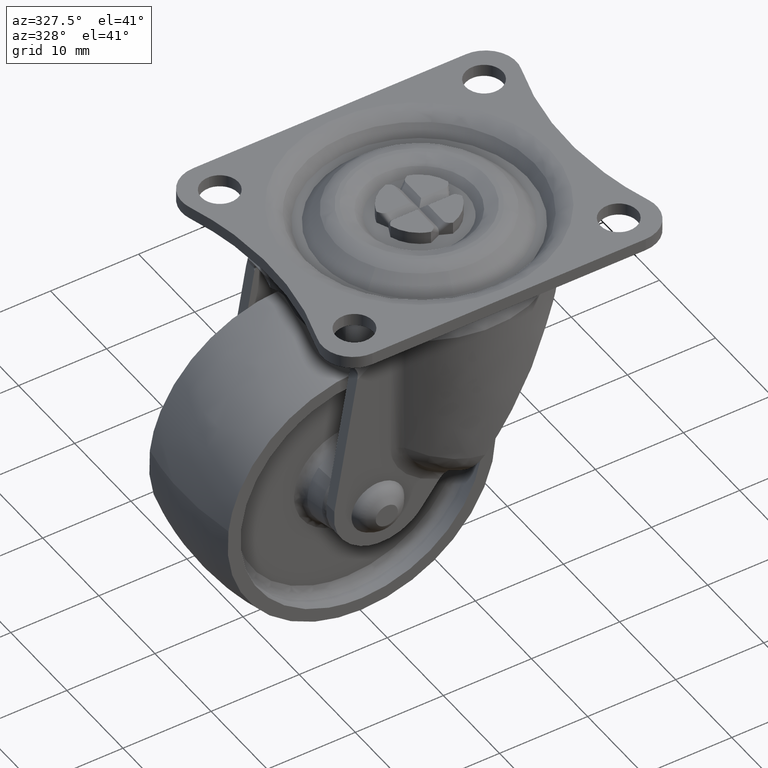
[diagram: clean part render]
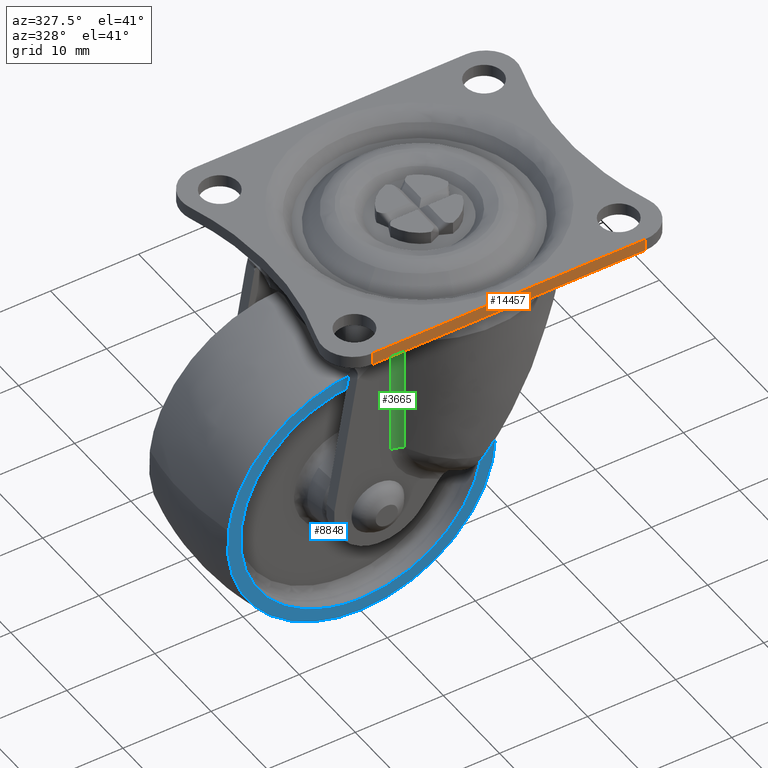
[diagram: same view with three faces highlighted in distinct colors, each labeled with its STEP entity id]
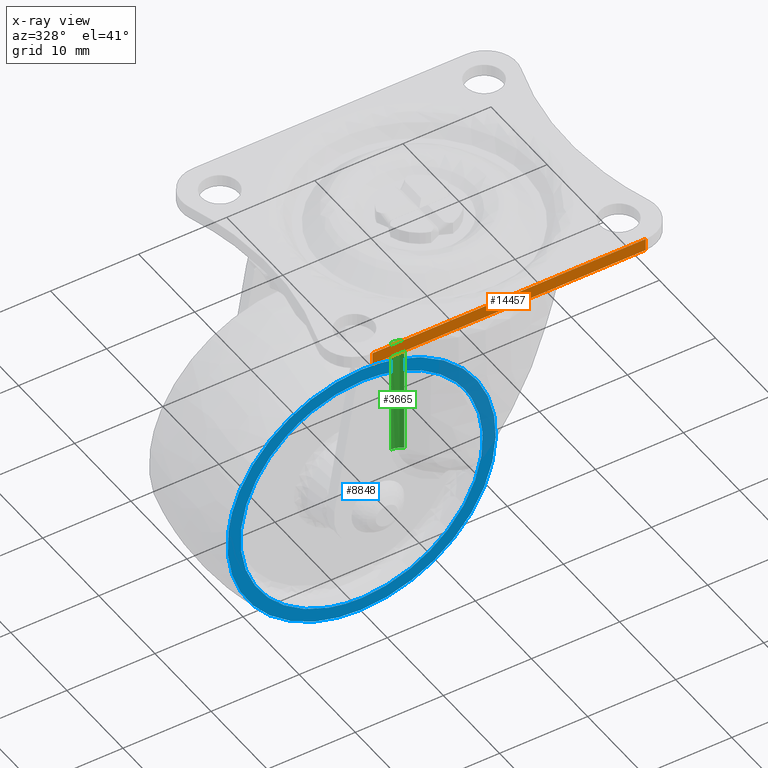
[diagram: x-ray of the same camera — body ghosted, the three highlighted faces saturated]
A machine part, auxiliary view with three faces highlighted in distinct colors.
The next image is the same camera in x-ray (body ghosted, the three faces saturated) — at least one of them is partly hidden behind the body in this view.
Their STEP definitions:

[orange] entity #14457 — the highlighted face is a freeform B-spline surface patch.
#14122=CARTESIAN_POINT('',(15.500000000000000,-16.0,-1.399999999999956));
#14123=VERTEX_POINT('',#14122);
#14139=CARTESIAN_POINT('',(-15.500003054326401,-15.999999999998749,-1.399999999999956));
#14140=VERTEX_POINT('',#14139);
#14141=CARTESIAN_POINT('',(-15.500003054326401,-15.999999999998749,-1.399999999999956));
#14142=CARTESIAN_POINT('',(15.500000000000000,-16.0,-1.399999999999956));
#14143=QUASI_UNIFORM_CURVE('',1,(#14141,#14142),.UNSPECIFIED.,.F.,.U.);
#14144=EDGE_CURVE('',#14140,#14123,#14143,.T.);
#14410=CARTESIAN_POINT('',(-15.500003054326401,-15.999999999998749,0.0));
#14411=VERTEX_POINT('',#14410);
#14412=CARTESIAN_POINT('',(-15.500003054326401,-15.999999999998749,-1.399999999999956));
#14413=CARTESIAN_POINT('',(-15.500003054326401,-15.999999999998749,0.0));
#14414=QUASI_UNIFORM_CURVE('',1,(#14412,#14413),.UNSPECIFIED.,.F.,.U.);
#14415=EDGE_CURVE('',#14140,#14411,#14414,.T.);
#14436=CARTESIAN_POINT('',(-17.048453146805979,-16.0,0.069929992284743));
#14437=CARTESIAN_POINT('',(-17.048453146805979,-16.0,-1.469929929699822));
#14438=CARTESIAN_POINT('',(17.048450923964459,-16.0,0.069929992284743));
#14439=CARTESIAN_POINT('',(17.048450923964459,-16.0,-1.469929929699822));
#14440=B_SPLINE_SURFACE_WITH_KNOTS('',1,1,((#14436,#14438),(#14437,#14439)),.UNSPECIFIED.,.F.,.F.,.U.,(2,2),(2,2),(0.041708337925747,0.958291624821350),(0.0,34.096904070770449),.UNSPECIFIED.);
#14441=ORIENTED_EDGE('',*,*,#14144,.T.);
#14442=CARTESIAN_POINT('',(15.500000000000000,-16.0,0.0));
#14443=VERTEX_POINT('',#14442);
#14444=CARTESIAN_POINT('',(15.500000000000000,-16.0,-1.399999999999956));
#14445=CARTESIAN_POINT('',(15.500000000000000,-16.0,0.0));
#14446=QUASI_UNIFORM_CURVE('',1,(#14444,#14445),.UNSPECIFIED.,.F.,.U.);
#14447=EDGE_CURVE('',#14123,#14443,#14446,.T.);
#14448=ORIENTED_EDGE('',*,*,#14447,.T.);
#14449=CARTESIAN_POINT('',(-15.500003054326401,-15.999999999998749,0.0));
#14450=CARTESIAN_POINT('',(15.500000000000000,-16.0,0.0));
#14451=QUASI_UNIFORM_CURVE('',1,(#14449,#14450),.UNSPECIFIED.,.F.,.U.);
#14452=EDGE_CURVE('',#14411,#14443,#14451,.T.);
#14453=ORIENTED_EDGE('',*,*,#14452,.F.);
#14454=ORIENTED_EDGE('',*,*,#14415,.F.);
#14455=EDGE_LOOP('',(#14441,#14448,#14453,#14454));
#14456=FACE_OUTER_BOUND('',#14455,.T.);
#14457=ADVANCED_FACE('',(#14456),#14440,.T.);

[blue] entity #8848 — the highlighted face is a freeform B-spline surface patch.
#6855=CARTESIAN_POINT('',(-8.559574523220956,-6.999999999999999,10.760863533258931));
#6856=VERTEX_POINT('',#6855);
#6862=CARTESIAN_POINT('',(0.0,-7.0,-13.750000000000000));
#6863=VERTEX_POINT('',#6862);
#6864=CARTESIAN_POINT('',(-8.559574523220956,-6.999999999999999,10.760863533258927));
#6865=CARTESIAN_POINT('',(-13.750000000000004,-7.0,6.632214049098293));
#6866=CARTESIAN_POINT('',(-13.750000000000000,-7.0,8.173480E-016));
#6867=CARTESIAN_POINT('',(-13.750000000000000,-6.999999999999999,-13.750000000000000));
#6868=CARTESIAN_POINT('',(0.0,-7.0,-13.750000000000000));
#6876=(BOUNDED_CURVE()B_SPLINE_CURVE(2,(#6864,#6865,#6866,#6867,#6868),.UNSPECIFIED.,.F.,.U.)B_SPLINE_CURVE_WITH_KNOTS((3,2,3),(0.607863853047559,0.750000000000000,1.0),.UNSPECIFIED.)CURVE()GEOMETRIC_REPRESENTATION_ITEM()RATIONAL_B_SPLINE_CURVE((0.856305626463806,0.833477145637431,1.0,0.707106781186547,1.0))REPRESENTATION_ITEM(''));
#6877=EDGE_CURVE('',#6856,#6863,#6876,.T.);
#6879=CARTESIAN_POINT('',(10.760863196087209,-6.999999999999999,8.559574947104146));
#6880=VERTEX_POINT('',#6879);
#6881=CARTESIAN_POINT('',(0.0,-7.0,-13.750000000000000));
#6882=CARTESIAN_POINT('',(13.750000000000000,-6.999999999999999,-13.750000000000000));
#6883=CARTESIAN_POINT('',(13.750000000000000,-7.0,8.173480E-016));
#6884=CARTESIAN_POINT('',(13.750000000000004,-7.0,4.801714022926398));
#6885=CARTESIAN_POINT('',(10.760863196087207,-6.999999999999999,8.559574947104146));
#6893=(BOUNDED_CURVE()B_SPLINE_CURVE(2,(#6881,#6882,#6883,#6884,#6885),.UNSPECIFIED.,.F.,.U.)B_SPLINE_CURVE_WITH_KNOTS((3,2,3),(0.0,0.250000000000000,0.357863859010395),.UNSPECIFIED.)CURVE()GEOMETRIC_REPRESENTATION_ITEM()RATIONAL_B_SPLINE_CURVE((1.0,0.707106781186547,1.0,0.873629628563220,0.856305624548425))REPRESENTATION_ITEM(''));
#6894=EDGE_CURVE('',#6863,#6880,#6893,.T.);
#6994=CARTESIAN_POINT('',(0.0,-7.0,13.750000000000000));
#6995=VERTEX_POINT('',#6994);
#6996=CARTESIAN_POINT('',(10.760863196087207,-6.999999999999999,8.559574947104146));
#6997=CARTESIAN_POINT('',(6.632213715277697,-7.0,13.749999999999998));
#6998=CARTESIAN_POINT('',(0.0,-7.0,13.750000000000000));
#7006=(BOUNDED_CURVE()B_SPLINE_CURVE(2,(#6996,#6997,#6998),.UNSPECIFIED.,.F.,.U.)B_SPLINE_CURVE_WITH_KNOTS((3,3),(0.357863859010395,0.500000000000000),.UNSPECIFIED.)CURVE()GEOMETRIC_REPRESENTATION_ITEM()RATIONAL_B_SPLINE_CURVE((0.856305624548425,0.833477152623327,1.0))REPRESENTATION_ITEM(''));
#7007=EDGE_CURVE('',#6880,#6995,#7006,.T.);
#7009=CARTESIAN_POINT('',(0.0,-7.0,13.750000000000000));
#7010=CARTESIAN_POINT('',(-4.801713719085792,-7.0,13.749999999999998));
#7011=CARTESIAN_POINT('',(-8.559574523220956,-6.999999999999999,10.760863533258927));
#7019=(BOUNDED_CURVE()B_SPLINE_CURVE(2,(#7009,#7010,#7011),.UNSPECIFIED.,.F.,.U.)B_SPLINE_CURVE_WITH_KNOTS((3,3),(0.500000000000000,0.607863853047559),.UNSPECIFIED.)CURVE()GEOMETRIC_REPRESENTATION_ITEM()RATIONAL_B_SPLINE_CURVE((1.0,0.873629635549116,0.856305626463806))REPRESENTATION_ITEM(''));
#7020=EDGE_CURVE('',#6995,#6856,#7019,.T.);
#8655=CARTESIAN_POINT('',(-15.123161329356810,-6.999994010070928,1.757939859969984));
#8656=VERTEX_POINT('',#8655);
#8657=CARTESIAN_POINT('',(0.0,-7.0,-15.224989991992100));
#8658=VERTEX_POINT('',#8657);
#8659=CARTESIAN_POINT('',(-15.123161329356801,-6.999994010070928,1.757939859969985));
#8660=CARTESIAN_POINT('',(-15.224991291427029,-6.999994164558437,0.881919293565685));
#8661=CARTESIAN_POINT('',(-15.224991252795290,-6.999994338044040,0.000000146557726));
#8662=CARTESIAN_POINT('',(-15.224990585877206,-6.999997333008575,-15.224989922957965));
#8663=CARTESIAN_POINT('',(0.0,-7.0,-15.224989991992100));
#8671=(BOUNDED_CURVE()B_SPLINE_CURVE(2,(#8659,#8660,#8661,#8662,#8663),.UNSPECIFIED.,.F.,.U.)B_SPLINE_CURVE_WITH_KNOTS((3,2,3),(0.730000022717255,0.750000000000000,1.0),.UNSPECIFIED.)CURVE()GEOMETRIC_REPRESENTATION_ITEM()RATIONAL_B_SPLINE_CURVE((0.956886162903731,0.976568569109844,1.0,0.707106781186548,1.0))REPRESENTATION_ITEM(''));
#8672=EDGE_CURVE('',#8656,#8658,#8671,.T.);
#8725=CARTESIAN_POINT('',(0.0,-6.999992856377462,15.224991593443450));
#8726=VERTEX_POINT('',#8725);
#8742=CARTESIAN_POINT('',(0.0,-7.0,-15.224989991992100));
#8743=CARTESIAN_POINT('',(15.224989991992107,-6.999999999999999,-15.224989991992107));
#8744=CARTESIAN_POINT('',(15.224989991992100,-6.999996428188731,0.000000800725678));
#8745=CARTESIAN_POINT('',(15.224989991992107,-6.999992856377462,15.224991593443457));
#8746=CARTESIAN_POINT('',(0.0,-6.999992856377462,15.224991593443450));
#8754=(BOUNDED_CURVE()B_SPLINE_CURVE(2,(#8742,#8743,#8744,#8745,#8746),.UNSPECIFIED.,.F.,.U.)B_SPLINE_CURVE_WITH_KNOTS((3,2,3),(0.0,0.250000000000000,0.500000000000000),.UNSPECIFIED.)CURVE()GEOMETRIC_REPRESENTATION_ITEM()RATIONAL_B_SPLINE_CURVE((1.0,0.707106781186548,1.0,0.707106781186548,1.0))REPRESENTATION_ITEM(''));
#8755=EDGE_CURVE('',#8658,#8726,#8754,.T.);
#8783=CARTESIAN_POINT('',(0.0,-6.999992856377462,15.224991593443450));
#8784=CARTESIAN_POINT('',(-13.557729733000485,-6.999993433224195,15.224990870241376));
#8785=CARTESIAN_POINT('',(-15.123161329356801,-6.999994010070928,1.757939859969985));
#8793=(BOUNDED_CURVE()B_SPLINE_CURVE(2,(#8783,#8784,#8785),.UNSPECIFIED.,.F.,.U.)B_SPLINE_CURVE_WITH_KNOTS((3,3),(0.500000000000000,0.730000022717255),.UNSPECIFIED.)CURVE()GEOMETRIC_REPRESENTATION_ITEM()RATIONAL_B_SPLINE_CURVE((1.0,0.730538212076704,0.956886162903731))REPRESENTATION_ITEM(''));
#8794=EDGE_CURVE('',#8726,#8656,#8793,.T.);
#8832=CARTESIAN_POINT('',(-16.745881168591900,-7.0,-16.745966513166639));
#8833=CARTESIAN_POINT('',(-16.745881168591900,-7.0,16.745968931350131));
#8834=CARTESIAN_POINT('',(16.745963193367750,-7.0,-16.745966513166639));
#8835=CARTESIAN_POINT('',(16.745963193367750,-7.0,16.745968931350131));
#8836=B_SPLINE_SURFACE_WITH_KNOTS('',1,1,((#8832,#8834),(#8833,#8835)),.UNSPECIFIED.,.F.,.F.,.U.,(2,2),(2,2),(0.0,33.491935444516770),(0.0,33.491844361959643),.UNSPECIFIED.);
#8837=ORIENTED_EDGE('',*,*,#8755,.T.);
#8838=ORIENTED_EDGE('',*,*,#8794,.T.);
#8839=ORIENTED_EDGE('',*,*,#8672,.T.);
#8840=EDGE_LOOP('',(#8837,#8838,#8839));
#8841=FACE_OUTER_BOUND('',#8840,.T.);
#8842=ORIENTED_EDGE('',*,*,#6894,.F.);
#8843=ORIENTED_EDGE('',*,*,#6877,.F.);
#8844=ORIENTED_EDGE('',*,*,#7020,.F.);
#8845=ORIENTED_EDGE('',*,*,#7007,.F.);
#8846=EDGE_LOOP('',(#8842,#8843,#8844,#8845));
#8847=FACE_BOUND('',#8846,.T.);
#8848=ADVANCED_FACE('',(#8841,#8847),#8836,.F.);

[green] entity #3665 — the highlighted face is a freeform B-spline surface patch.
#2029=CARTESIAN_POINT('',(-9.536899517138449,-9.900002000000001,-5.955958602119620));
#2030=VERTEX_POINT('',#2029);
#2137=CARTESIAN_POINT('',(-9.491621514576400,-9.900514590066161,-5.900000000000130));
#2138=VERTEX_POINT('',#2137);
#2174=CARTESIAN_POINT('',(-9.491621514576394,-9.900514590066166,-5.900000000000135));
#2175=CARTESIAN_POINT('',(-9.506807743567302,-9.900170700871495,-5.918542468301557));
#2176=CARTESIAN_POINT('',(-9.521898766017594,-9.900002000000001,-5.937197163377146));
#2177=CARTESIAN_POINT('',(-9.536899517138449,-9.900002000000001,-5.955958602119620));
#2178=QUASI_UNIFORM_CURVE('',3,(#2174,#2175,#2176,#2177),.UNSPECIFIED.,.F.,.U.);
#2179=EDGE_CURVE('',#2138,#2030,#2178,.T.);
#2234=CARTESIAN_POINT('',(-8.286158596858000,-10.339346000000001,-5.900000000000000));
#2235=VERTEX_POINT('',#2234);
#2236=CARTESIAN_POINT('',(-8.286158596858000,-10.339346000000001,-5.900000000000000));
#2237=CARTESIAN_POINT('',(-8.814595999145036,-9.915845700864855,-5.900000000000130));
#2238=CARTESIAN_POINT('',(-9.491621514576400,-9.900514590066168,-5.900000000000130));
#2246=(BOUNDED_CURVE()B_SPLINE_CURVE(2,(#2236,#2237,#2238),.UNSPECIFIED.,.F.,.U.)CURVE()GEOMETRIC_REPRESENTATION_ITEM()QUASI_UNIFORM_CURVE()RATIONAL_B_SPLINE_CURVE((1.0,0.947176268826893,1.0))REPRESENTATION_ITEM(''));
#2247=EDGE_CURVE('',#2235,#2138,#2246,.T.);
#3550=CARTESIAN_POINT('',(-8.286158596857991,-10.339346000000020,-19.487431262149901));
#3551=VERTEX_POINT('',#3550);
#3585=CARTESIAN_POINT('',(-9.536899517138449,-9.900002000000001,-19.487431262149851));
#3586=VERTEX_POINT('',#3585);
#3587=CARTESIAN_POINT('',(-8.286158596857993,-10.339346000000020,-19.487431262149901));
#3588=CARTESIAN_POINT('',(-8.834365534478815,-9.900002000000020,-19.487431262149901));
#3589=CARTESIAN_POINT('',(-9.536899517138449,-9.900002000000020,-19.487431262149901));
#3597=(BOUNDED_CURVE()B_SPLINE_CURVE(2,(#3587,#3588,#3589),.UNSPECIFIED.,.F.,.U.)CURVE()GEOMETRIC_REPRESENTATION_ITEM()QUASI_UNIFORM_CURVE()RATIONAL_B_SPLINE_CURVE((1.0,0.943485029028018,1.0))REPRESENTATION_ITEM(''));
#3598=EDGE_CURVE('',#3551,#3586,#3597,.T.);
#3636=CARTESIAN_POINT('',(-9.589253413754198,-9.900687350048907,-19.827117043703652));
#3637=CARTESIAN_POINT('',(-9.589253413754198,-9.900687350048907,-5.551822073907408));
#3638=CARTESIAN_POINT('',(-8.819692803263260,-9.880535696259855,-19.827117043703645));
#3639=CARTESIAN_POINT('',(-8.819692803263260,-9.880535696259855,-5.551822073907409));
#3640=CARTESIAN_POINT('',(-8.235227869521236,-10.381565000388422,-19.827117043703641));
#3641=CARTESIAN_POINT('',(-8.235227869521236,-10.381565000388422,-5.551822073907407));
#3649=(BOUNDED_SURFACE()B_SPLINE_SURFACE(1,2,((#3636,#3638,#3640),(#3637,#3639,#3641)),.UNSPECIFIED.,.F.,.F.,.U.)B_SPLINE_SURFACE_WITH_KNOTS((2,2),(3,3),(0.0,14.275294969796240),(0.0,0.978712224543281),.UNSPECIFIED.)GEOMETRIC_REPRESENTATION_ITEM()RATIONAL_B_SPLINE_SURFACE(((1.0,0.931898823170556,0.997100554878633),(1.0,0.931898823170556,0.997100554878633)))REPRESENTATION_ITEM('')SURFACE());
#3650=ORIENTED_EDGE('',*,*,#2247,.T.);
#3651=ORIENTED_EDGE('',*,*,#2179,.T.);
#3652=CARTESIAN_POINT('',(-9.536899517138449,-9.900002000000001,-19.487431262149851));
#3653=CARTESIAN_POINT('',(-9.536899517138449,-9.900002000000001,-5.955958602119620));
#3654=QUASI_UNIFORM_CURVE('',1,(#3652,#3653),.UNSPECIFIED.,.F.,.U.);
#3655=EDGE_CURVE('',#3586,#2030,#3654,.T.);
#3656=ORIENTED_EDGE('',*,*,#3655,.F.);
#3657=ORIENTED_EDGE('',*,*,#3598,.F.);
#3658=CARTESIAN_POINT('',(-8.286158596858000,-10.339346000000001,-5.900000000000000));
#3659=CARTESIAN_POINT('',(-8.286158596857991,-10.339346000000020,-19.487431262149901));
#3660=QUASI_UNIFORM_CURVE('',1,(#3658,#3659),.UNSPECIFIED.,.F.,.U.);
#3661=EDGE_CURVE('',#2235,#3551,#3660,.T.);
#3662=ORIENTED_EDGE('',*,*,#3661,.F.);
#3663=EDGE_LOOP('',(#3650,#3651,#3656,#3657,#3662));
#3664=FACE_OUTER_BOUND('',#3663,.T.);
#3665=ADVANCED_FACE('',(#3664),#3649,.F.);